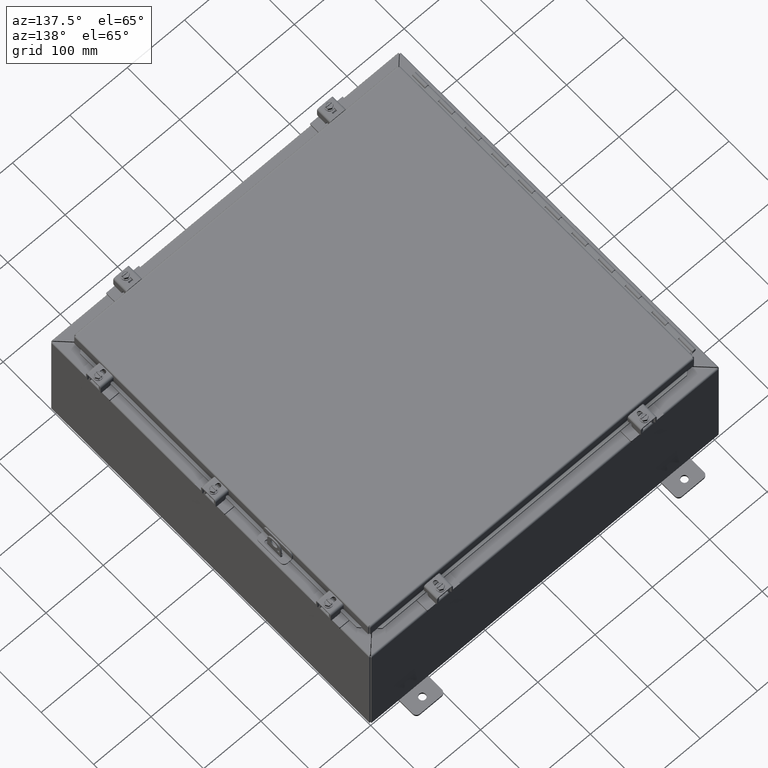
[diagram: clean part render]
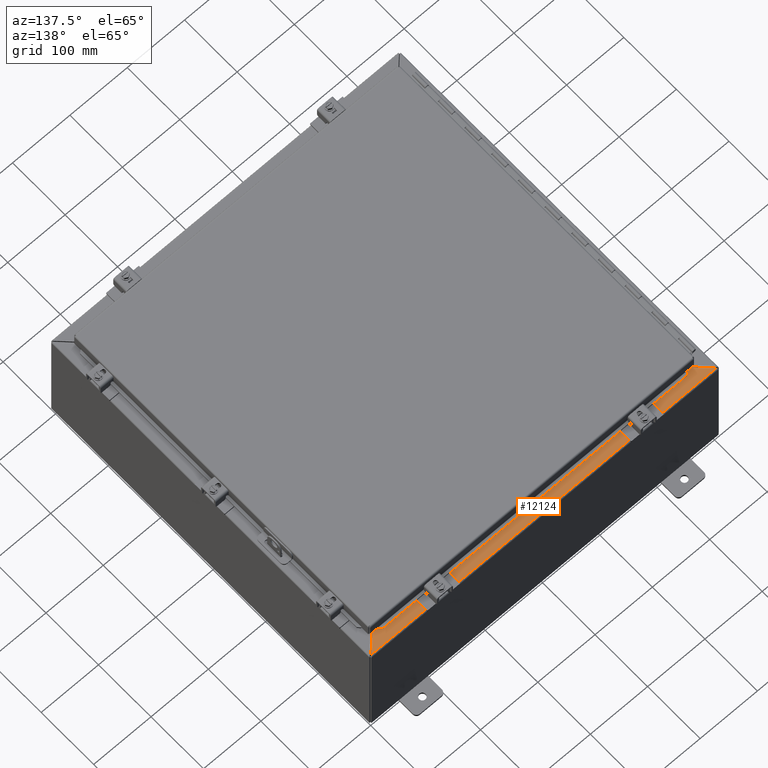
[diagram: same view with one face highlighted and labeled with its STEP entity id]
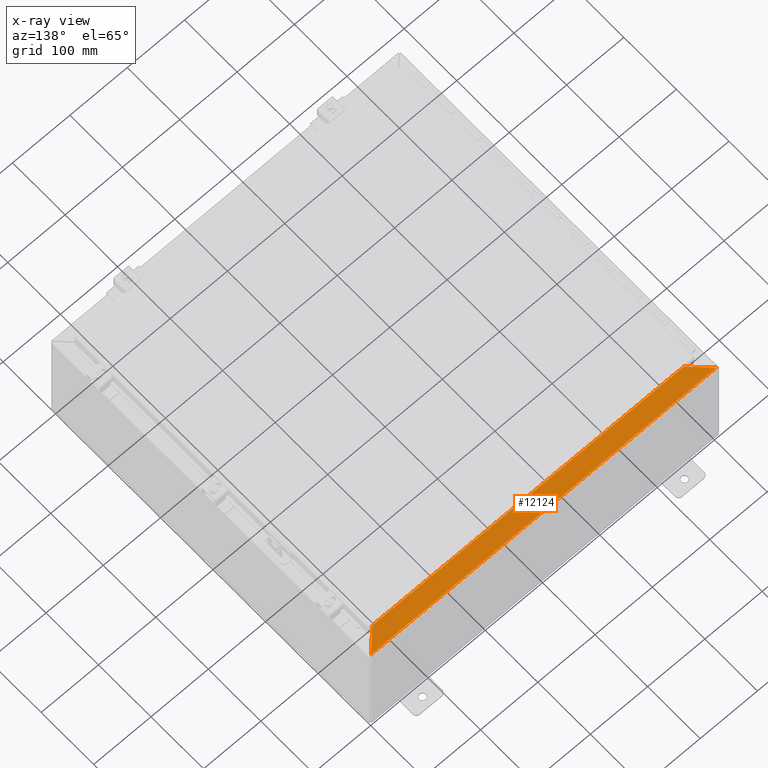
[diagram: x-ray of the same camera — body ghosted, the highlighted face saturated]
A machine part, auxiliary view. The second image highlights one B-rep face of the part: STEP entity #12124.
The next image is the same camera in x-ray: the body ghosted, the highlighted face saturated — about 0% of this face is hidden behind the body in this view.
In plain terms, the highlighted planar face has unit normal (-0, -0, 1).
Its self-contained STEP definition (entity closure, byte-faithful):
#1161=PLANE('',#12881);
#1640=LINE('',#17869,#2757);
#1662=LINE('',#18343,#2779);
#1663=LINE('',#18345,#2780);
#1664=LINE('',#18346,#2781);
#2757=VECTOR('',#14199,21.4081740981927);
#2779=VECTOR('',#14249,1.64685169338346);
#2780=VECTOR('',#14250,23.7371740981927);
#2781=VECTOR('',#14251,1.64685169338347);
#3870=FACE_OUTER_BOUND('',#4570,.T.);
#4570=EDGE_LOOP('',(#8904,#8905,#8906,#8907));
#5769=VERTEX_POINT('',#17863);
#5770=VERTEX_POINT('',#17868);
#5797=VERTEX_POINT('',#18342);
#5798=VERTEX_POINT('',#18344);
#6957=EDGE_CURVE('',#5770,#5769,#1640,.T.);
#7010=EDGE_CURVE('',#5797,#5769,#1662,.T.);
#7011=EDGE_CURVE('',#5797,#5798,#1663,.T.);
#7012=EDGE_CURVE('',#5770,#5798,#1664,.T.);
#8904=ORIENTED_EDGE('',*,*,#6957,.T.);
#8905=ORIENTED_EDGE('',*,*,#7010,.F.);
#8906=ORIENTED_EDGE('',*,*,#7011,.T.);
#8907=ORIENTED_EDGE('',*,*,#7012,.F.);
#12124=ADVANCED_FACE('',(#3870),#1161,.T.);
#12881=AXIS2_PLACEMENT_3D('',#18341,#14247,#14248);
#14199=DIRECTION('',(1.,-1.29397960892803E-16,1.27164720437648E-16));
#14247=DIRECTION('center_axis',(-1.2716472043765E-16,-1.73610793593098E-14,
1.));
#14248=DIRECTION('ref_axis',(-3.53073720903141E-19,-1.,-1.80477854883066E-14));
#14249=DIRECTION('',(-0.707106781186547,-0.707106781186548,-1.24472212572723E-14));
#14250=DIRECTION('',(-1.,1.16911921450584E-16,-1.27164720437648E-16));
#14251=DIRECTION('',(-0.707106781186548,0.707106781186547,1.24467219356276E-14));
#17863=CARTESIAN_POINT('',(10.7040870490966,10.73025,7.99999999999998));
#17868=CARTESIAN_POINT('',(-10.7040870490961,10.73025,7.99999999999998));
#17869=CARTESIAN_POINT('',(5.35204352454831,10.73025,7.99999999999998));
#18341=CARTESIAN_POINT('Origin',(4.17693283284184E-14,11.329274321345,7.99999999999999));
#18342=CARTESIAN_POINT('',(11.8685870490966,11.89475,8.));
#18343=CARTESIAN_POINT('',(11.8685870490966,11.89475,8.));
#18344=CARTESIAN_POINT('',(-11.8685870490961,11.89475,8.));
#18345=CARTESIAN_POINT('',(2.09087765142766E-14,11.89475,8.));
#18346=CARTESIAN_POINT('',(-11.8685870490961,11.89475,8.));